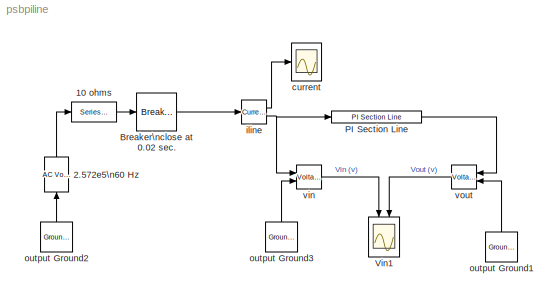
MODEL psbpiline
KIND model
BLOCK [Reference] 10 ohms  REF=powerlib2/Elements/Series RLC Branch
  PSBOutputType = 1
  Ports = [1, 1]
  SourceBlock = powerlib2/Elements/Series RLC Branch
  SourceType = Series RLC Branch
  Tag = PoWeRsYsTeMbLoCk
  a = 10
  b = 0
  c = inf
  mesure = None
BLOCK [Reference] 2.572e5\n60 Hz   REF=powerlib2/Electrical\nSources/AC Voltage Source
  A = (315e3*sqrt(2))/sqrt(30)
  F = 60
  P = 0
  PSBOutputType = 1
  Ports = [1, 1]
  SourceBlock = powerlib2/Electrical\nSources/AC Voltage Source
  SourceType = AC Voltage Source
  Tag = PoWeRsYsTeMbLoCk
  mesure = None
  stime = 0
BLOCK [Reference] Breaker\nclose at 0.02 sec.  REF=powerlib2/Elements/Breaker
  PSBOutputType = 1
  Ports = [1, 1]
  SourceBlock = powerlib2/Elements/Breaker
  SourceType = Breaker
  Tag = PoWeRsYsTeMbLoCk
  Ts = 0
  a = 1e-1
  c = 0
  comext = off
  cs = 0
  mesure = None
  rs = inf
  times = [ .02 ]
BLOCK [Reference] PI Section Line  REF=powerlib2/Elements/PI Section Line
  PSBOutputType = 1
  Ports = [1, 1]
  SourceBlock = powerlib2/Elements/PI Section Line
  SourceType = Pi Section Line
  Tag = PoWeRsYsTeMbLoCk
  a = 0.2568
  b = 2e-03
  c = 8.6e-09
  d = 100
  e = 1
  f = 60
  mesure = None
BLOCK [Scope] Vin1
  DataFormat = Array
  LimitDataPoints = off
  NumInputPorts = 2
  Ports = [2]
  TickLabels = on
  TimeRange = 0.05
  YMax = 100000~5
  YMin = -100000~-5
BLOCK [Scope] current
  DataFormat = Array
  MaxDataPoints = 5000000
  NumInputPorts = 1
  Ports = [1]
  TickLabels = on
  TimeRange = 0.05
  YMax = 100
  YMin = -100
BLOCK [Reference] iline  REF=powerlib2/Measurements/Current Measurement
  OutputType = Magnitude
  PSBOutputType = 01
  PSBequivalent = 0
  PhasorSimulation = off
  Ports = [1, 2]
  SourceBlock = powerlib2/Measurements/Current Measurement
  SourceType = Current Measurement
  Tag = PoWeRsYsTeMmEaSuReMeNt
BLOCK [Reference] output Ground1  REF=powerlib2/Connectors/Ground (output)
  PSBOutputType = 1
  Ports = [0, 1]
  SourceBlock = powerlib2/Connectors/Ground (output)
  SourceType = Ground
  Tag = PoWeRsYsTeMbLoCk
BLOCK [Reference] output Ground2  REF=powerlib2/Connectors/Ground (output)
  PSBOutputType = 1
  Ports = [0, 1]
  SourceBlock = powerlib2/Connectors/Ground (output)
  SourceType = Ground
  Tag = PoWeRsYsTeMbLoCk
BLOCK [Reference] output Ground3  REF=powerlib2/Connectors/Ground (output)
  PSBOutputType = 1
  Ports = [0, 1]
  SourceBlock = powerlib2/Connectors/Ground (output)
  SourceType = Ground
  Tag = PoWeRsYsTeMbLoCk
BLOCK [Reference] vin  REF=powerlib2/Measurements/Voltage Measurement
  OutputType = Magnitude
  PSBOutputType = 0
  PSBequivalent = 0
  PhasorSimulation = off
  Ports = [2, 1]
  SourceBlock = powerlib2/Measurements/Voltage Measurement
  SourceType = Voltage Measurement
  Tag = PoWeRsYsTeMmEaSuReMeNt
BLOCK [Reference] vout  REF=powerlib2/Measurements/Voltage Measurement
  OutputType = Magnitude
  PSBOutputType = 0
  PSBequivalent = 0
  PhasorSimulation = off
  Ports = [2, 1]
  SourceBlock = powerlib2/Measurements/Voltage Measurement
  SourceType = Voltage Measurement
  Tag = PoWeRsYsTeMmEaSuReMeNt
LINE 10 ohms:1 -> Breaker\nclose at 0.02 sec.:1
LINE 2.572e5\n60 Hz :1 -> 10 ohms:1
LINE Breaker\nclose at 0.02 sec.:1 -> iline:1
LINE PI Section Line:1 -> vout:1
LINE iline:1 -> current:1
NET iline:2 -> PI Section Line:1, vin:1
LINE output Ground1:1 -> vout:2
LINE output Ground2:1 -> 2.572e5\n60 Hz :1
LINE output Ground3:1 -> vin:2
LINE vin:1 -> Vin1:1
LINE vout:1 -> Vin1:2
note: NET lines group one-source signal fan-out (src -> all destinations, sorted); 1:1 wires keep LINE
